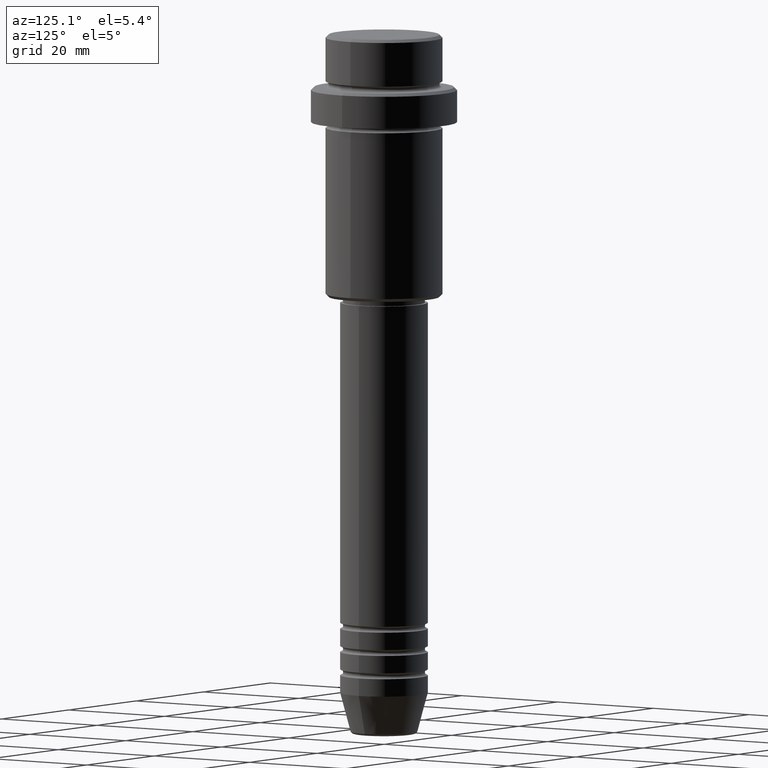
[diagram: clean part render]
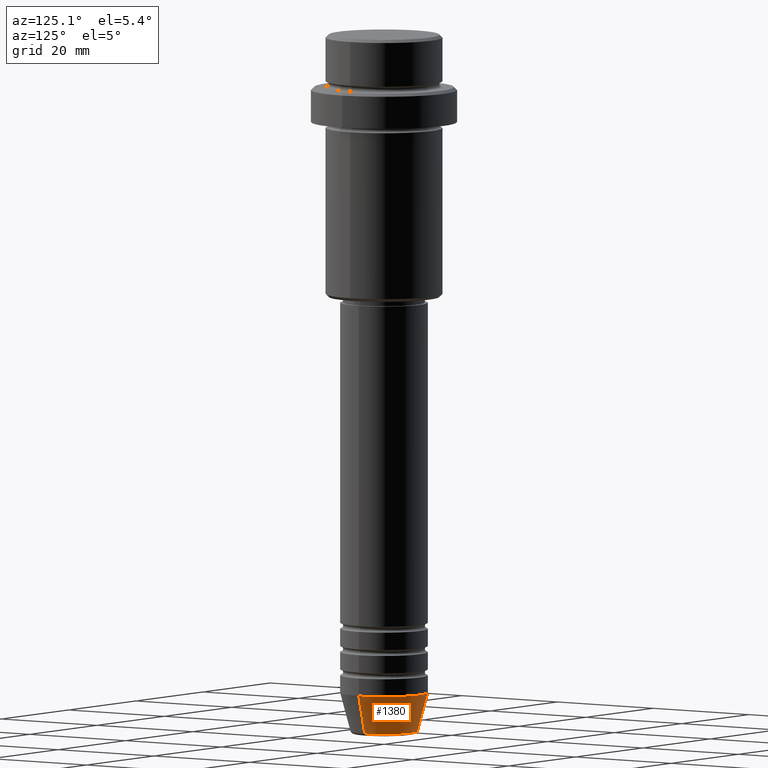
[diagram: same view with one face highlighted and labeled with its STEP entity id]
A machine part, auxiliary view. The second image highlights one B-rep face of the part: STEP entity #1380.
In plain terms, the highlighted conical surface has half-angle 15 deg.
Its self-contained STEP definition (entity closure, byte-faithful):
#13 = CIRCLE ( 'NONE', #193, 5.723655072137191269 ) ;
#97 = ORIENTED_EDGE ( 'NONE', *, *, #545, .F. ) ;
#144 = LINE ( 'NONE', #731, #147 ) ;
#147 = VECTOR ( 'NONE', #943, 1000.000000000000000 ) ;
#193 = AXIS2_PLACEMENT_3D ( 'NONE', #1012, #1352, #1026 ) ;
#222 = VERTEX_POINT ( 'NONE', #533 ) ;
#263 = VERTEX_POINT ( 'NONE', #778 ) ;
#271 = LINE ( 'NONE', #1347, #1108 ) ;
#323 = ORIENTED_EDGE ( 'NONE', *, *, #400, .T. ) ;
#397 = DIRECTION ( 'NONE',  ( -0.000000000000000000, -0.000000000000000000, 1.000000000000000000 ) ) ;
#400 = EDGE_CURVE ( 'NONE', #263, #591, #271, .T. ) ;
#469 = EDGE_CURVE ( 'NONE', #976, #222, #144, .T. ) ;
#476 = CARTESIAN_POINT ( 'NONE',  ( 5.723655072137191269, 0.000000000000000000, -119.6294095225512564 ) ) ;
#504 = DIRECTION ( 'NONE',  ( 1.000000000000000000, 0.000000000000000000, 0.000000000000000000 ) ) ;
#533 = CARTESIAN_POINT ( 'NONE',  ( 7.500000000000000000, 0.000000000000000000, -112.9999999999999858 ) ) ;
#545 = EDGE_CURVE ( 'NONE', #222, #591, #1301, .T. ) ;
#569 = DIRECTION ( 'NONE',  ( -0.000000000000000000, -0.000000000000000000, 1.000000000000000000 ) ) ;
#579 = ORIENTED_EDGE ( 'NONE', *, *, #469, .F. ) ;
#587 = AXIS2_PLACEMENT_3D ( 'NONE', #1072, #397, #504 ) ;
#591 = VERTEX_POINT ( 'NONE', #1060 ) ;
#671 = FACE_OUTER_BOUND ( 'NONE', #1095, .T. ) ;
#729 = CONICAL_SURFACE ( 'NONE', #882, 7.500000000000000000, 0.2617993877991500740 ) ;
#731 = CARTESIAN_POINT ( 'NONE',  ( 7.500000000000000000, 0.000000000000000000, -112.9999999999999858 ) ) ;
#778 = CARTESIAN_POINT ( 'NONE',  ( -5.723655072137190380, 8.097153428560735915E-16, -119.6294095225512564 ) ) ;
#882 = AXIS2_PLACEMENT_3D ( 'NONE', #993, #569, #1330 ) ;
#943 = DIRECTION ( 'NONE',  ( 0.2588190451025213501, 0.000000000000000000, 0.9659258262890680902 ) ) ;
#976 = VERTEX_POINT ( 'NONE', #476 ) ;
#993 = CARTESIAN_POINT ( 'NONE',  ( 0.000000000000000000, 0.000000000000000000, -112.9999999999999858 ) ) ;
#1012 = CARTESIAN_POINT ( 'NONE',  ( 0.000000000000000000, 0.000000000000000000, -119.6294095225512564 ) ) ;
#1026 = DIRECTION ( 'NONE',  ( 1.000000000000000000, 0.000000000000000000, 0.000000000000000000 ) ) ;
#1060 = CARTESIAN_POINT ( 'NONE',  ( -7.500000000000000000, 9.184850993605147944E-16, -112.9999999999999858 ) ) ;
#1066 = EDGE_CURVE ( 'NONE', #976, #263, #13, .T. ) ;
#1072 = CARTESIAN_POINT ( 'NONE',  ( 0.000000000000000000, 0.000000000000000000, -112.9999999999999858 ) ) ;
#1095 = EDGE_LOOP ( 'NONE', ( #1132, #323, #97, #579 ) ) ;
#1108 = VECTOR ( 'NONE', #1153, 1000.000000000000000 ) ;
#1132 = ORIENTED_EDGE ( 'NONE', *, *, #1066, .T. ) ;
#1153 = DIRECTION ( 'NONE',  ( -0.2588190451025213501, 3.169619151431772337E-17, 0.9659258262890680902 ) ) ;
#1301 = CIRCLE ( 'NONE', #587, 7.500000000000000000 ) ;
#1330 = DIRECTION ( 'NONE',  ( 1.000000000000000000, 0.000000000000000000, 0.000000000000000000 ) ) ;
#1347 = CARTESIAN_POINT ( 'NONE',  ( -7.500000000000000000, 9.184850993605147944E-16, -112.9999999999999858 ) ) ;
#1352 = DIRECTION ( 'NONE',  ( -0.000000000000000000, -0.000000000000000000, 1.000000000000000000 ) ) ;
#1380 = ADVANCED_FACE ( 'NONE', ( #671 ), #729, .T. ) ;